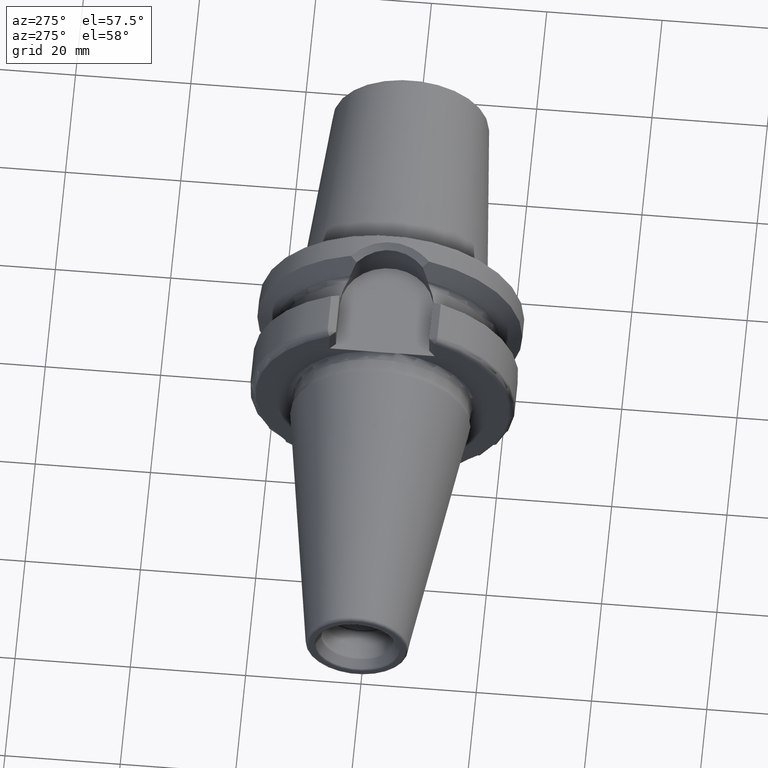
[diagram: clean part render]
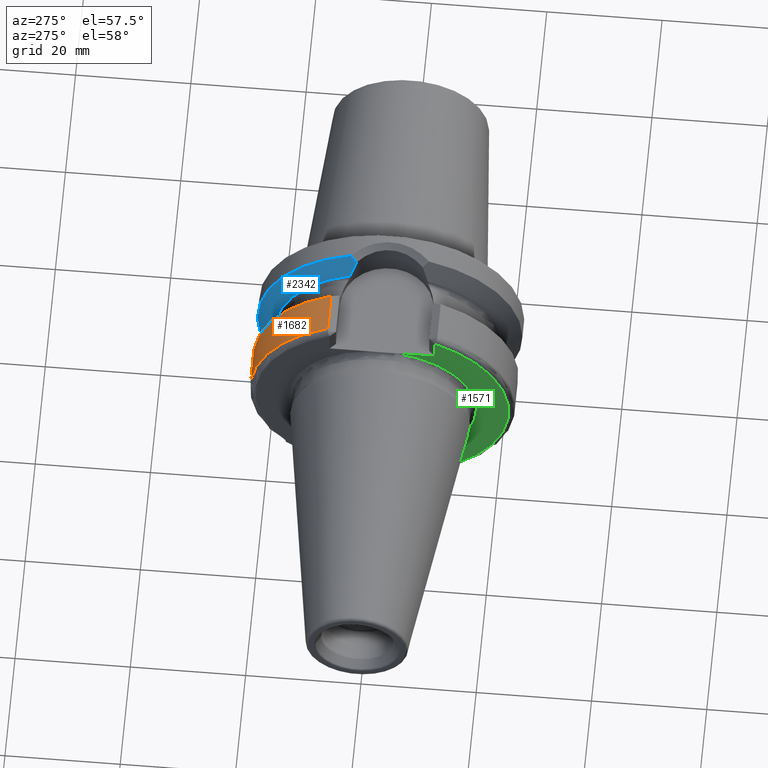
[diagram: same view with three faces highlighted in distinct colors, each labeled with its STEP entity id]
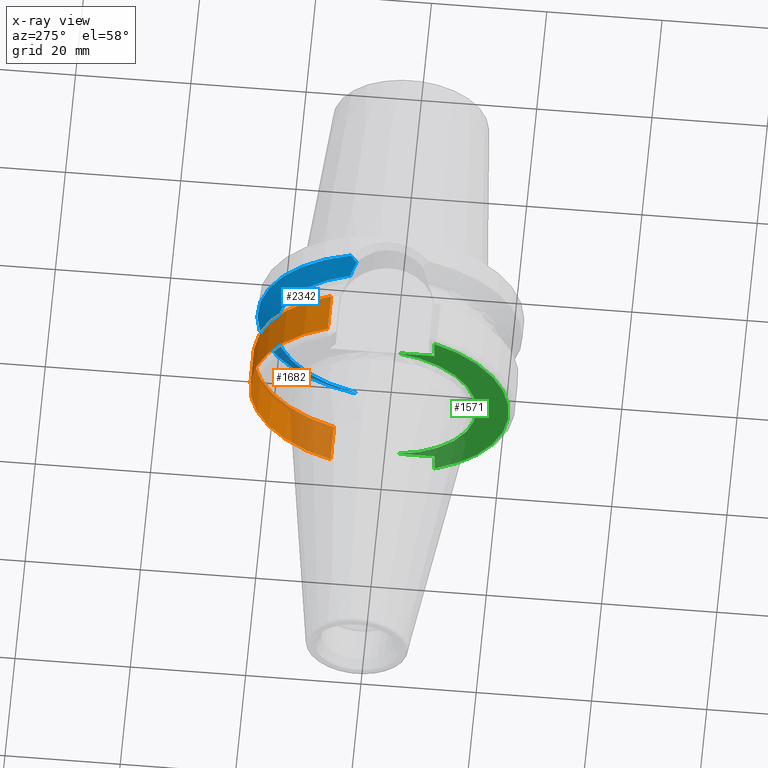
[diagram: x-ray of the same camera — body ghosted, the three highlighted faces saturated]
A machine part, auxiliary view with three faces highlighted in distinct colors.
The next image is the same camera in x-ray (body ghosted, the three faces saturated) — at least one of them is partly hidden behind the body in this view.
Their STEP definitions:

[orange] entity #1682 — the highlighted cylindrical surface (partial cylindrical patch) has radius 22.99 mm, axis along (1, 0, 0).
#208=CARTESIAN_POINT('',(3.E0,0.E0,0.E0));
#209=DIRECTION('',(-1.E0,0.E0,0.E0));
#210=DIRECTION('',(0.E0,4.135970895862E-1,9.104600197075E-1));
#211=AXIS2_PLACEMENT_3D('',#208,#209,#210);
#213=DIRECTION('',(-9.999999999953E-1,1.691137855745E-6,2.559578267209E-6));
#214=VECTOR('',#213,6.650924186073E0);
#215=CARTESIAN_POINT('',(9.650924158743E0,9.014912704843E0,-2.114879308434E1));
#216=LINE('',#215,#214);
#217=CARTESIAN_POINT('',(9.650924158743E0,0.E0,0.E0));
#218=DIRECTION('',(1.E0,0.E0,0.E0));
#219=DIRECTION('',(0.E0,3.921232146517E-1,-9.199127048428E-1));
#220=AXIS2_PLACEMENT_3D('',#217,#218,#219);
#222=DIRECTION('',(9.999999999877E-1,2.689360368038E-6,-4.174830095266E-6));
#223=VECTOR('',#222,6.650924175867E0);
#224=CARTESIAN_POINT('',(2.999999982958E0,9.508579202854E0,2.093150361955E1));
#225=LINE('',#224,#223);
#582=CARTESIAN_POINT('',(2.999999972701E0,9.014923952472E0,-2.114877606078E1));
#1308=CARTESIAN_POINT('',(9.650924158743E0,9.014912704843E0,-2.114879308434E1));
#1309=CARTESIAN_POINT('',(9.650924158743E0,9.508597089586E0,2.093147585308E1));
#1310=VERTEX_POINT('',#1308);
#1311=VERTEX_POINT('',#1309);
#1323=CARTESIAN_POINT('',(3.E0,9.508621994147E0,2.093146453960E1));
#1325=VERTEX_POINT('',#1323);
#1340=VERTEX_POINT('',#582);
#1668=CARTESIAN_POINT('',(-5.192E1,0.E0,0.E0));
#1669=DIRECTION('',(1.E0,0.E0,0.E0));
#1670=DIRECTION('',(0.E0,-1.E0,0.E0));
#1671=AXIS2_PLACEMENT_3D('',#1668,#1669,#1670);
#1672=CYLINDRICAL_SURFACE('',#1671,2.299E1);
#1674=ORIENTED_EDGE('',*,*,#1673,.T.);
#1676=ORIENTED_EDGE('',*,*,#1675,.F.);
#1677=ORIENTED_EDGE('',*,*,#1611,.T.);
#1679=ORIENTED_EDGE('',*,*,#1678,.F.);
#1680=EDGE_LOOP('',(#1674,#1676,#1677,#1679));
#1681=FACE_OUTER_BOUND('',#1680,.F.);
#1682=ADVANCED_FACE('',(#1681),#1672,.T.);
#212=CIRCLE('',#211,2.299E1);
#221=CIRCLE('',#220,2.299E1);
#1611=EDGE_CURVE('',#1310,#1311,#221,.T.);
#1673=EDGE_CURVE('',#1325,#1340,#212,.T.);
#1675=EDGE_CURVE('',#1310,#1340,#216,.T.);
#1678=EDGE_CURVE('',#1325,#1311,#225,.T.);

[blue] entity #2342 — the highlighted conical surface has half-angle 60 deg.
#244=CARTESIAN_POINT('',(1.754907584126E1,0.E0,0.E0));
#245=DIRECTION('',(1.E0,0.E0,0.E0));
#246=DIRECTION('',(0.E0,2.802529554758E-1,-9.599261851554E-1));
#247=AXIS2_PLACEMENT_3D('',#244,#245,#246);
#321=CARTESIAN_POINT('',(1.56375E1,6.740639342822E0,-1.848861619239E1));
#322=CARTESIAN_POINT('',(1.580141693669E1,6.631635191826E0,-1.883055017756E1));
#323=CARTESIAN_POINT('',(1.612022880799E1,6.402379286160E0,-1.949407617939E1));
#324=CARTESIAN_POINT('',(1.657016835682E1,6.026547681230E0,-2.042714206942E1));
#325=CARTESIAN_POINT('',(1.685106915981E1,5.755169905209E0,-2.100794481881E1));
#326=CARTESIAN_POINT('',(1.698655422750E1,5.614445679829E0,-2.128775096196E1));
#519=CARTESIAN_POINT('',(1.685762423454E1,5.745354805374E0,2.102137764954E1));
#520=CARTESIAN_POINT('',(1.667158652396E1,5.930008876853E0,2.063686487213E1));
#521=CARTESIAN_POINT('',(1.628166811893E1,6.281182202369E0,1.982963416011E1));
#522=CARTESIAN_POINT('',(1.585764706705E1,6.594242365047E0,1.894784734616E1));
#523=CARTESIAN_POINT('',(1.56375E1,6.740639342822E0,1.848861619239E1));
#749=CARTESIAN_POINT('',(1.56375E1,0.E0,0.E0));
#750=DIRECTION('',(-1.E0,0.E0,0.E0));
#751=DIRECTION('',(0.E0,3.425286351209E-1,9.395073890727E-1));
#752=AXIS2_PLACEMENT_3D('',#749,#750,#751);
#766=CARTESIAN_POINT('',(1.698655422750E1,5.614445679829E0,-2.128775096196E1));
#767=CARTESIAN_POINT('',(1.704704785143E1,5.704776797294E0,-2.137228787957E1));
#768=CARTESIAN_POINT('',(1.716937480752E1,5.886585064290E0,-2.154284936475E1));
#769=CARTESIAN_POINT('',(1.735689240414E1,6.162776097467E0,-2.180317574240E1));
#770=CARTESIAN_POINT('',(1.748456978985E1,6.349213293706E0,-2.197969674892E1));
#771=CARTESIAN_POINT('',(1.754907584126E1,6.443015446388E0,-2.206870299672E1));
#773=CARTESIAN_POINT('',(1.754907584126E1,0.E0,0.E0));
#774=DIRECTION('',(1.E0,0.E0,0.E0));
#775=DIRECTION('',(0.E0,1.E0,0.E0));
#776=AXIS2_PLACEMENT_3D('',#773,#774,#775);
#918=CARTESIAN_POINT('',(1.754907584126E1,6.761871244710E0,2.197310167614E1));
#919=CARTESIAN_POINT('',(1.746924165528E1,6.646331333623E0,2.186398102541E1));
#920=CARTESIAN_POINT('',(1.731157385698E1,6.416997798511E0,2.164799004205E1));
#921=CARTESIAN_POINT('',(1.708106887013E1,6.078162644323E0,2.133072844085E1));
#922=CARTESIAN_POINT('',(1.693143417745E1,5.855724896324E0,2.112374379343E1));
#923=CARTESIAN_POINT('',(1.685762423454E1,5.745354805374E0,2.102137764954E1));
#1178=CARTESIAN_POINT('',(1.56375E1,6.740639342822E0,1.848861619239E1));
#1179=CARTESIAN_POINT('',(1.56375E1,6.740639342822E0,-1.848861619239E1));
#1180=VERTEX_POINT('',#1178);
#1181=VERTEX_POINT('',#1179);
#1194=CARTESIAN_POINT('',(1.754907584126E1,2.299E1,0.E0));
#1195=CARTESIAN_POINT('',(1.754907584126E1,6.761871244710E0,2.197310167614E1));
#1196=VERTEX_POINT('',#1194);
#1197=VERTEX_POINT('',#1195);
#1208=CARTESIAN_POINT('',(1.754907584126E1,6.443015446388E0,-2.206870299672E1));
#1209=VERTEX_POINT('',#1208);
#1297=VERTEX_POINT('',#519);
#1303=VERTEX_POINT('',#326);
#2325=CARTESIAN_POINT('',(1.659328792063E1,0.E0,0.E0));
#2326=DIRECTION('',(1.E0,0.E0,0.E0));
#2327=DIRECTION('',(0.E0,-1.E0,0.E0));
#2328=AXIS2_PLACEMENT_3D('',#2325,#2326,#2327);
#2329=CONICAL_SURFACE('',#2328,2.133452676021E1,6.E1);
#2330=ORIENTED_EDGE('',*,*,#1783,.T.);
#2331=ORIENTED_EDGE('',*,*,#1746,.T.);
#2333=ORIENTED_EDGE('',*,*,#2332,.T.);
#2334=ORIENTED_EDGE('',*,*,#1696,.T.);
#2336=ORIENTED_EDGE('',*,*,#2335,.T.);
#2338=ORIENTED_EDGE('',*,*,#2337,.T.);
#2339=ORIENTED_EDGE('',*,*,#1936,.T.);
#2340=EDGE_LOOP('',(#2330,#2331,#2333,#2334,#2336,#2338,#2339));
#2341=FACE_OUTER_BOUND('',#2340,.F.);
#2342=ADVANCED_FACE('',(#2341),#2329,.T.);
#248=CIRCLE('',#247,2.299E1);
#327=B_SPLINE_CURVE_WITH_KNOTS('',3,(#321,#322,#323,#324,#325,#326),
.UNSPECIFIED.,.F.,.F.,(4,1,1,4),(0.E0,3.333333333333E-1,6.666666666667E-1,1.E0),
.UNSPECIFIED.);
#524=B_SPLINE_CURVE_WITH_KNOTS('',3,(#519,#520,#521,#522,#523),.UNSPECIFIED.,
.F.,.F.,(4,1,4),(0.E0,5.E-1,1.E0),.UNSPECIFIED.);
#753=CIRCLE('',#752,1.967905352042E1);
#772=B_SPLINE_CURVE_WITH_KNOTS('',3,(#766,#767,#768,#769,#770,#771),
.UNSPECIFIED.,.F.,.F.,(4,1,1,4),(0.E0,3.333333333333E-1,6.666666666667E-1,1.E0),
.UNSPECIFIED.);
#777=CIRCLE('',#776,2.299E1);
#924=B_SPLINE_CURVE_WITH_KNOTS('',3,(#918,#919,#920,#921,#922,#923),
.UNSPECIFIED.,.F.,.F.,(4,1,1,4),(0.E0,3.333333333333E-1,6.666666666667E-1,1.E0),
.UNSPECIFIED.);
#1696=EDGE_CURVE('',#1209,#1196,#248,.T.);
#1746=EDGE_CURVE('',#1181,#1303,#327,.T.);
#1783=EDGE_CURVE('',#1180,#1181,#753,.T.);
#1936=EDGE_CURVE('',#1297,#1180,#524,.T.);
#2332=EDGE_CURVE('',#1303,#1209,#772,.T.);
#2335=EDGE_CURVE('',#1196,#1197,#777,.T.);
#2337=EDGE_CURVE('',#1197,#1297,#924,.T.);

[green] entity #1571 — the highlighted planar face has unit normal (1, 0, 0).
#111=CARTESIAN_POINT('',(2.E0,0.E0,0.E0));
#112=DIRECTION('',(-1.E0,0.E0,0.E0));
#113=DIRECTION('',(0.E0,-1.652032561545E-1,-9.862595419847E-1));
#114=AXIS2_PLACEMENT_3D('',#111,#112,#113);
#135=DIRECTION('',(-4.744939476094E-6,4.745345850988E-6,-9.999999999775E-1));
#136=VECTOR('',#135,3.871014231904E0);
#137=CARTESIAN_POINT('',(2.E0,-9.095E0,-1.615E1));
#138=LINE('',#137,#136);
#139=DIRECTION('',(7.287242153305E-6,-7.289057608771E-6,-9.999999999469E-1));
#140=VECTOR('',#139,3.871026255551E0);
#141=CARTESIAN_POINT('',(1.999971790894E0,-9.094971783867E0,2.002102625535E1));
#142=LINE('',#141,#140);
#603=CARTESIAN_POINT('',(1.999981632272E0,-9.094981630699E0,-2.002101423182E1));
#614=CARTESIAN_POINT('',(2.E0,0.E0,0.E0));
#615=DIRECTION('',(-1.E0,0.E0,0.E0));
#616=DIRECTION('',(0.E0,-4.135972017393E-1,-9.104599687594E-1));
#617=AXIS2_PLACEMENT_3D('',#614,#615,#616);
#670=DIRECTION('',(0.E0,1.E0,0.E0));
#671=VECTOR('',#670,6.389796680469E0);
#672=CARTESIAN_POINT('',(2.E0,-9.095E0,1.615E1));
#673=LINE('',#672,#671);
#711=CARTESIAN_POINT('',(2.E0,0.E0,0.E0));
#712=DIRECTION('',(1.E0,0.E0,0.E0));
#713=DIRECTION('',(0.E0,-1.652032561545E-1,9.862595419847E-1));
#714=AXIS2_PLACEMENT_3D('',#711,#712,#713);
#736=DIRECTION('',(0.E0,-1.E0,0.E0));
#737=VECTOR('',#736,6.389796680469E0);
#738=CARTESIAN_POINT('',(2.E0,-2.705203319531E0,-1.615E1));
#739=LINE('',#738,#737);
#1216=CARTESIAN_POINT('',(2.E0,-1.6375E1,0.E0));
#1218=VERTEX_POINT('',#1216);
#1282=CARTESIAN_POINT('',(2.E0,-2.705203319531E0,1.615E1));
#1283=VERTEX_POINT('',#1282);
#1290=CARTESIAN_POINT('',(2.E0,-2.705203319531E0,-1.615E1));
#1291=VERTEX_POINT('',#1290);
#1316=CARTESIAN_POINT('',(1.999971790894E0,-9.094971783867E0,2.002102625535E1));
#1317=CARTESIAN_POINT('',(2.E0,-9.095E0,1.615E1));
#1318=VERTEX_POINT('',#1316);
#1319=VERTEX_POINT('',#1317);
#1341=VERTEX_POINT('',#603);
#1343=CARTESIAN_POINT('',(2.E0,-9.095E0,-1.615E1));
#1344=VERTEX_POINT('',#1343);
#1551=CARTESIAN_POINT('',(2.E0,0.E0,0.E0));
#1552=DIRECTION('',(1.E0,0.E0,0.E0));
#1553=DIRECTION('',(0.E0,-1.E0,0.E0));
#1554=AXIS2_PLACEMENT_3D('',#1551,#1552,#1553);
#1555=PLANE('',#1554);
#1557=ORIENTED_EDGE('',*,*,#1556,.F.);
#1559=ORIENTED_EDGE('',*,*,#1558,.F.);
#1560=ORIENTED_EDGE('',*,*,#1523,.T.);
#1562=ORIENTED_EDGE('',*,*,#1561,.F.);
#1564=ORIENTED_EDGE('',*,*,#1563,.F.);
#1566=ORIENTED_EDGE('',*,*,#1565,.F.);
#1568=ORIENTED_EDGE('',*,*,#1567,.F.);
#1569=EDGE_LOOP('',(#1557,#1559,#1560,#1562,#1564,#1566,#1568));
#1570=FACE_OUTER_BOUND('',#1569,.F.);
#1571=ADVANCED_FACE('',(#1570),#1555,.F.);
#115=CIRCLE('',#114,1.6375E1);
#618=CIRCLE('',#617,2.199E1);
#715=CIRCLE('',#714,1.6375E1);
#1523=EDGE_CURVE('',#1291,#1218,#115,.T.);
#1556=EDGE_CURVE('',#1344,#1341,#138,.T.);
#1558=EDGE_CURVE('',#1291,#1344,#739,.T.);
#1561=EDGE_CURVE('',#1283,#1218,#715,.T.);
#1563=EDGE_CURVE('',#1319,#1283,#673,.T.);
#1565=EDGE_CURVE('',#1318,#1319,#142,.T.);
#1567=EDGE_CURVE('',#1341,#1318,#618,.T.);